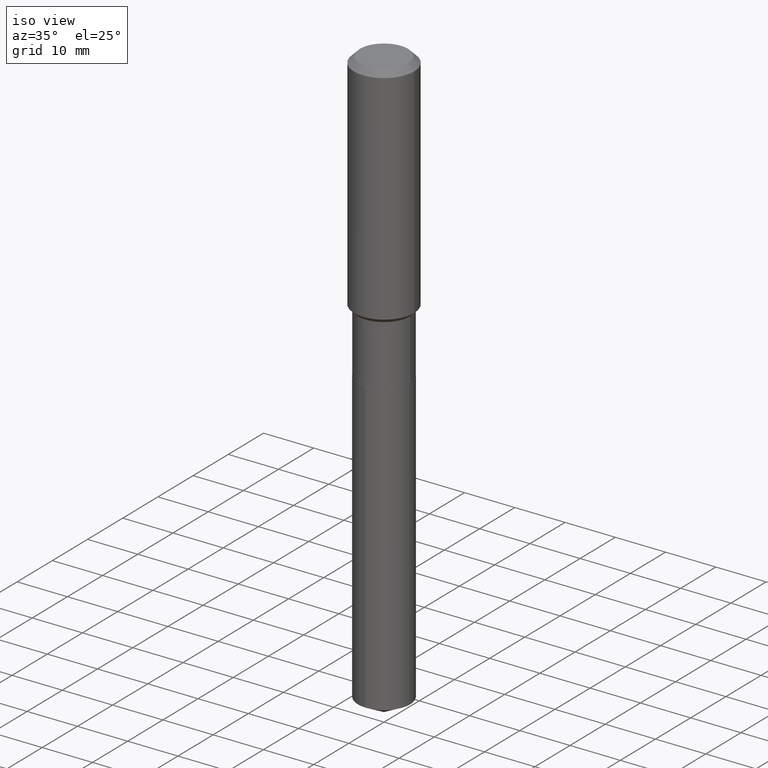
[diagram: clean part render]
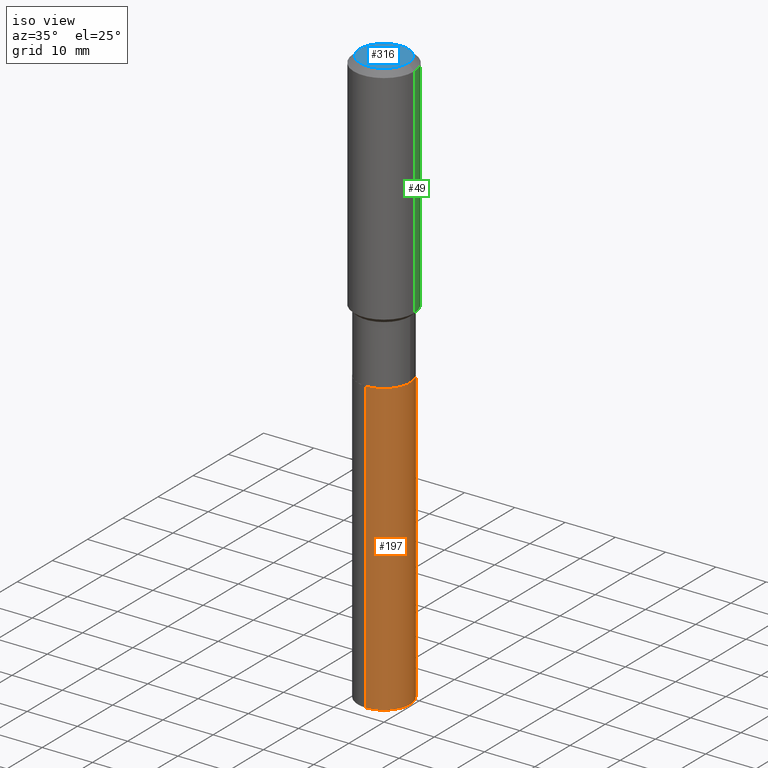
[diagram: same view with three faces highlighted in distinct colors, each labeled with its STEP entity id]
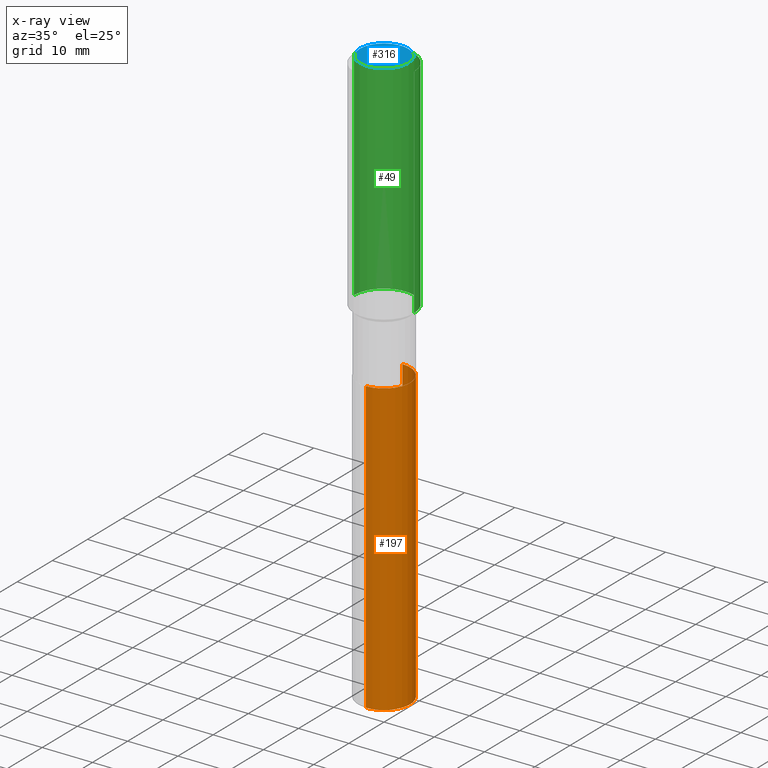
[diagram: x-ray of the same camera — body ghosted, the three highlighted faces saturated]
A machine part, iso view with three faces highlighted in distinct colors.
The next image is the same camera in x-ray (body ghosted, the three faces saturated) — at least one of them is partly hidden behind the body in this view.
Their STEP definitions:

[orange] entity #197 — the highlighted cylindrical surface (edge-blend (fillet) strip) has radius 5.2006 mm, axis along (-0, 0, 1).
#20 = EDGE_CURVE ( 'NONE', #132, #204, #367, .T. ) ;
#43 = CARTESIAN_POINT ( 'NONE',  ( 1.454836251468860065E-15, 0.2047499999999921050, -2.259900000000000020 ) ) ;
#45 = VERTEX_POINT ( 'NONE', #109 ) ;
#84 = EDGE_CURVE ( 'NONE', #204, #45, #188, .T. ) ;
#85 = DIRECTION ( 'NONE',  ( -6.982962677686265922E-15, -1.000000000000000000, 2.668471788683041116E-15 ) ) ;
#90 = ORIENTED_EDGE ( 'NONE', *, *, #84, .F. ) ;
#100 = DIRECTION ( 'NONE',  ( -2.445449978833330651E-29, 3.491508300682517446E-15, 1.000000000000000000 ) ) ;
#101 = DIRECTION ( 'NONE',  ( -2.445449978833330651E-29, 3.491508300682517841E-15, 1.000000000000000000 ) ) ;
#102 = CARTESIAN_POINT ( 'NONE',  ( 1.454836251468915680E-15, 0.2047499999999841391, -4.536832493867312799 ) ) ;
#109 = CARTESIAN_POINT ( 'NONE',  ( 1.454836251468916272E-15, 0.2047499999999921050, -2.259900000000000020 ) ) ;
#110 = VERTEX_POINT ( 'NONE', #102 ) ;
#131 = AXIS2_PLACEMENT_3D ( 'NONE', #362, #251, #213 ) ;
#132 = VERTEX_POINT ( 'NONE', #250 ) ;
#133 = FACE_OUTER_BOUND ( 'NONE', #265, .T. ) ;
#163 = AXIS2_PLACEMENT_3D ( 'NONE', #448, #101, #85 ) ;
#173 = VECTOR ( 'NONE', #292, 39.37007874015748143 ) ;
#176 = LINE ( 'NONE', #43, #329 ) ;
#188 = CIRCLE ( 'NONE', #266, 0.2047499999999999876 ) ;
#197 = ADVANCED_FACE ( 'NONE', ( #133 ), #452, .T. ) ;
#204 = VERTEX_POINT ( 'NONE', #484 ) ;
#205 = EDGE_CURVE ( 'NONE', #132, #110, #479, .T. ) ;
#213 = DIRECTION ( 'NONE',  ( -6.982962677686265922E-15, -1.000000000000000000, 4.002707683024561674E-15 ) ) ;
#238 = ORIENTED_EDGE ( 'NONE', *, *, #205, .T. ) ;
#250 = CARTESIAN_POINT ( 'NONE',  ( -1.429761608256151864E-15, -0.2047500000000158360, -4.536832493867311911 ) ) ;
#251 = DIRECTION ( 'NONE',  ( -2.445449978833330651E-29, 3.491508300682517841E-15, 1.000000000000000000 ) ) ;
#265 = EDGE_LOOP ( 'NONE', ( #238, #417, #90, #407 ) ) ;
#266 = AXIS2_PLACEMENT_3D ( 'NONE', #410, #453, #322 ) ;
#292 = DIRECTION ( 'NONE',  ( -2.445449978833330651E-29, 3.491508300682517446E-15, 1.000000000000000000 ) ) ;
#322 = DIRECTION ( 'NONE',  ( -6.982962677686265922E-15, -1.000000000000000000, 4.002707683024561674E-15 ) ) ;
#329 = VECTOR ( 'NONE', #100, 39.37007874015748143 ) ;
#331 = CARTESIAN_POINT ( 'NONE',  ( -1.429761608256207479E-15, -0.2047500000000078701, -2.259899999999998688 ) ) ;
#362 = CARTESIAN_POINT ( 'NONE',  ( 5.526514955097788983E-29, -7.890398677651621852E-15, -2.259899999999999132 ) ) ;
#367 = LINE ( 'NONE', #331, #173 ) ;
#407 = ORIENTED_EDGE ( 'NONE', *, *, #20, .F. ) ;
#410 = CARTESIAN_POINT ( 'NONE',  ( 5.526514955097788983E-29, -7.890398677651621852E-15, -2.259899999999999132 ) ) ;
#417 = ORIENTED_EDGE ( 'NONE', *, *, #451, .T. ) ;
#448 = CARTESIAN_POINT ( 'NONE',  ( 1.109463947403053403E-28, -1.584032738008309195E-14, -4.536832493867312799 ) ) ;
#451 = EDGE_CURVE ( 'NONE', #110, #45, #176, .T. ) ;
#452 = CYLINDRICAL_SURFACE ( 'NONE', #131, 0.2047499999999999876 ) ;
#453 = DIRECTION ( 'NONE',  ( -2.445449978833330651E-29, 3.491508300682517841E-15, 1.000000000000000000 ) ) ;
#479 = CIRCLE ( 'NONE', #163, 0.2047499999999999876 ) ;
#484 = CARTESIAN_POINT ( 'NONE',  ( -1.429761608256207479E-15, -0.2047500000000078701, -2.259899999999998688 ) ) ;

[blue] entity #316 — the highlighted planar face has unit normal (0, -0, -1).
#9 = DIRECTION ( 'NONE',  ( -2.445468806185136597E-29, 3.491481338843145583E-15, 1.000000000000000000 ) ) ;
#33 = DIRECTION ( 'NONE',  ( 1.000000000000000000, -6.982962677686266711E-15, 4.876185090822587894E-29 ) ) ;
#52 = ORIENTED_EDGE ( 'NONE', *, *, #327, .T. ) ;
#55 = DIRECTION ( 'NONE',  ( -1.000000000000000000, 6.982962677686265922E-15, -4.876176775795935793E-29 ) ) ;
#65 = CARTESIAN_POINT ( 'NONE',  ( -0.1889600000000000168, 1.401969416799070942E-15, 3.855188123706346622E-18 ) ) ;
#66 = CARTESIAN_POINT ( 'NONE',  ( -9.427742298522546243E-47, 1.346031739168365344E-32, 3.855188123715862256E-18 ) ) ;
#82 = CARTESIAN_POINT ( 'NONE',  ( -4.713871149261273121E-47, 6.730158695841826722E-33, 1.927594061857931128E-18 ) ) ;
#168 = ORIENTED_EDGE ( 'NONE', *, *, #201, .T. ) ;
#174 = AXIS2_PLACEMENT_3D ( 'NONE', #82, #229, #55 ) ;
#184 = EDGE_LOOP ( 'NONE', ( #168, #52 ) ) ;
#195 = DIRECTION ( 'NONE',  ( 1.000000000000000000, -6.982962677686266711E-15, 4.876185090822587894E-29 ) ) ;
#201 = EDGE_CURVE ( 'NONE', #259, #401, #276, .T. ) ;
#229 = DIRECTION ( 'NONE',  ( 2.438088387897960049E-29, -3.491481338843145188E-15, -1.000000000000000000 ) ) ;
#254 = CARTESIAN_POINT ( 'NONE',  ( 0.1889600000000000168, -1.540873453589747738E-15, 3.855188123725863225E-18 ) ) ;
#259 = VERTEX_POINT ( 'NONE', #65 ) ;
#276 = CIRCLE ( 'NONE', #411, 0.1889600000000000168 ) ;
#316 = ADVANCED_FACE ( 'NONE', ( #384 ), #379, .F. ) ;
#327 = EDGE_CURVE ( 'NONE', #401, #259, #471, .T. ) ;
#379 = PLANE ( 'NONE',  #174 ) ;
#384 = FACE_OUTER_BOUND ( 'NONE', #184, .T. ) ;
#401 = VERTEX_POINT ( 'NONE', #254 ) ;
#411 = AXIS2_PLACEMENT_3D ( 'NONE', #66, #439, #33 ) ;
#425 = CARTESIAN_POINT ( 'NONE',  ( -9.427742298522546243E-47, 1.346031739168365344E-32, 3.855188123715862256E-18 ) ) ;
#439 = DIRECTION ( 'NONE',  ( -2.445468806185136597E-29, 3.491481338843145583E-15, 1.000000000000000000 ) ) ;
#455 = AXIS2_PLACEMENT_3D ( 'NONE', #425, #9, #195 ) ;
#471 = CIRCLE ( 'NONE', #455, 0.1889600000000000168 ) ;

[green] entity #49 — the highlighted cylindrical surface (partial cylindrical patch) has radius 5.9995 mm, axis along (-0, 0, 1).
#2 = ORIENTED_EDGE ( 'NONE', *, *, #447, .F. ) ;
#6 = CYLINDRICAL_SURFACE ( 'NONE', #91, 0.2362000000000001043 ) ;
#8 = CARTESIAN_POINT ( 'NONE',  ( -0.2362000000000002153, -4.458151085218409431E-15, -1.757549999999999057 ) ) ;
#18 = LINE ( 'NONE', #474, #314 ) ;
#42 = LINE ( 'NONE', #364, #277 ) ;
#47 = EDGE_LOOP ( 'NONE', ( #437, #428, #180, #2 ) ) ;
#49 = ADVANCED_FACE ( 'NONE', ( #456 ), #6, .T. ) ;
#86 = CARTESIAN_POINT ( 'NONE',  ( 0.2361999999999999933, -1.814313362916447440E-15, -0.04724000000000028177 ) ) ;
#89 = DIRECTION ( 'NONE',  ( 1.000000000000000000, -6.982962677686266711E-15, 0.000000000000000000 ) ) ;
#91 = AXIS2_PLACEMENT_3D ( 'NONE', #298, #372, #488 ) ;
#129 = DIRECTION ( 'NONE',  ( -2.445468806185136597E-29, 3.491481338843145583E-15, 1.000000000000000000 ) ) ;
#144 = AXIS2_PLACEMENT_3D ( 'NONE', #335, #261, #89 ) ;
#171 = VERTEX_POINT ( 'NONE', #339 ) ;
#180 = ORIENTED_EDGE ( 'NONE', *, *, #295, .F. ) ;
#203 = VERTEX_POINT ( 'NONE', #317 ) ;
#261 = DIRECTION ( 'NONE',  ( -2.445468806185136597E-29, 3.491481338843145583E-15, 1.000000000000000000 ) ) ;
#268 = CIRCLE ( 'NONE', #300, 0.2362000000000002153 ) ;
#277 = VECTOR ( 'NONE', #325, 39.37007874015748143 ) ;
#295 = EDGE_CURVE ( 'NONE', #345, #171, #443, .T. ) ;
#298 = CARTESIAN_POINT ( 'NONE',  ( 0.000000000000000000, 0.000000000000000000, 0.000000000000000000 ) ) ;
#300 = AXIS2_PLACEMENT_3D ( 'NONE', #312, #129, #487 ) ;
#309 = DIRECTION ( 'NONE',  ( -2.445468806185136877E-29, 3.491481338843145188E-15, 1.000000000000000000 ) ) ;
#312 = CARTESIAN_POINT ( 'NONE',  ( 4.298033700310684854E-29, -6.136453027083767403E-15, -1.757549999999999057 ) ) ;
#314 = VECTOR ( 'NONE', #309, 39.37007874015748143 ) ;
#317 = CARTESIAN_POINT ( 'NONE',  ( 0.2362000000000002153, -7.785828811553264717E-15, -1.757549999999999057 ) ) ;
#325 = DIRECTION ( 'NONE',  ( -2.445468806185136877E-29, 3.491481338843145188E-15, 1.000000000000000000 ) ) ;
#335 = CARTESIAN_POINT ( 'NONE',  ( 1.155239464041865506E-30, -1.649375784469511859E-16, -0.04724000000000028177 ) ) ;
#339 = CARTESIAN_POINT ( 'NONE',  ( -0.2361999999999999933, -1.472393360900001581E-15, -0.04724000000000028177 ) ) ;
#345 = VERTEX_POINT ( 'NONE', #86 ) ;
#364 = CARTESIAN_POINT ( 'NONE',  ( 0.2362000000000001043, -1.649375784469496920E-15, 1.151752954443000508E-29 ) ) ;
#366 = EDGE_CURVE ( 'NONE', #398, #171, #18, .T. ) ;
#372 = DIRECTION ( 'NONE',  ( -2.445468806185136597E-29, 3.491481338843145583E-15, 1.000000000000000000 ) ) ;
#374 = EDGE_CURVE ( 'NONE', #203, #398, #268, .T. ) ;
#398 = VERTEX_POINT ( 'NONE', #8 ) ;
#428 = ORIENTED_EDGE ( 'NONE', *, *, #366, .T. ) ;
#437 = ORIENTED_EDGE ( 'NONE', *, *, #374, .T. ) ;
#443 = CIRCLE ( 'NONE', #144, 0.2361999999999999933 ) ;
#447 = EDGE_CURVE ( 'NONE', #203, #345, #42, .T. ) ;
#456 = FACE_OUTER_BOUND ( 'NONE', #47, .T. ) ;
#474 = CARTESIAN_POINT ( 'NONE',  ( -0.2362000000000001043, 1.678301941865357380E-15, -1.161852468318209317E-29 ) ) ;
#487 = DIRECTION ( 'NONE',  ( 1.000000000000000000, -6.982962677686266711E-15, 0.000000000000000000 ) ) ;
#488 = DIRECTION ( 'NONE',  ( 1.000000000000000000, -6.982962677686266711E-15, 4.876176775795935793E-29 ) ) ;